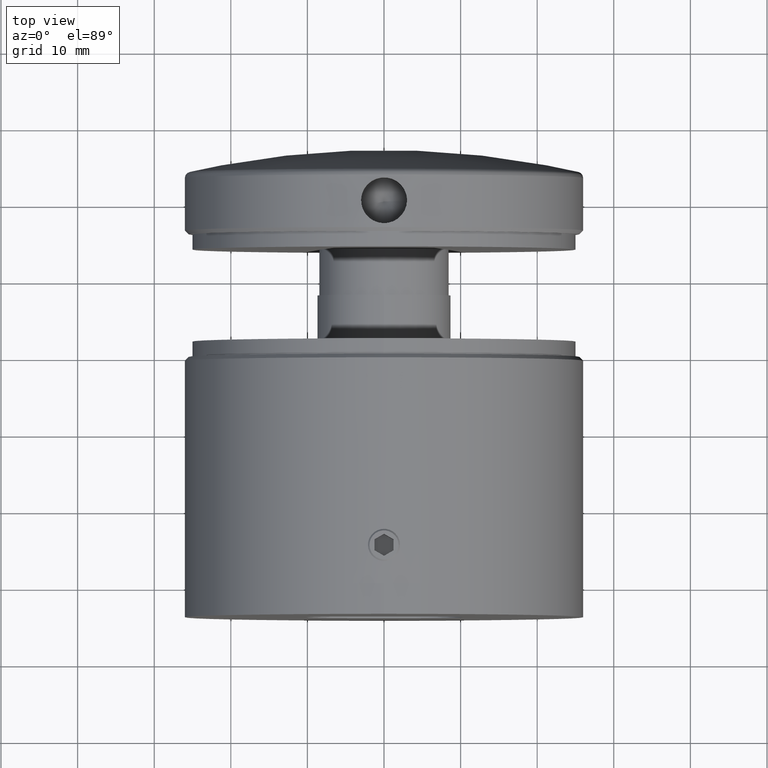
[diagram: clean part render]
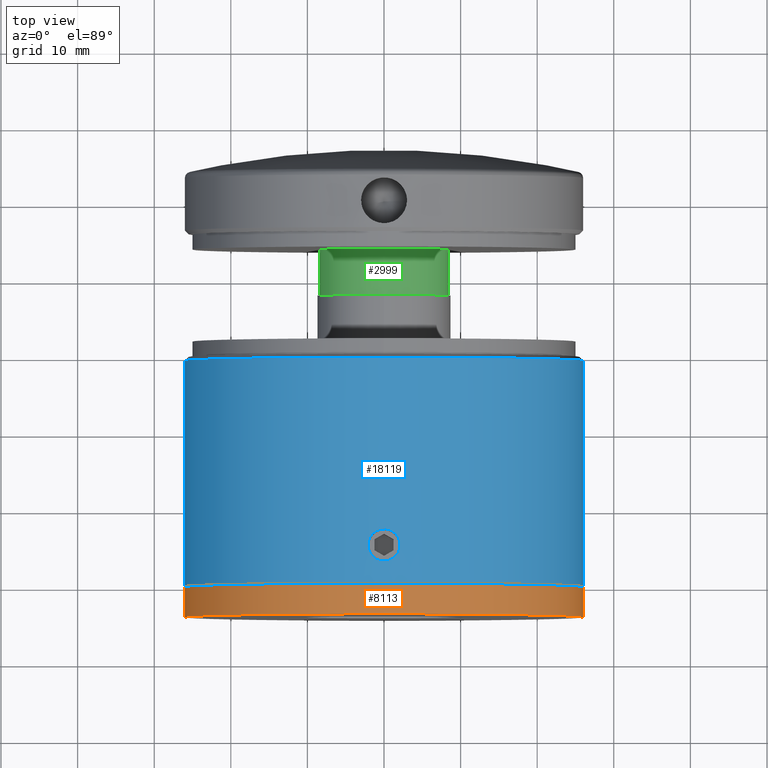
[diagram: same view with three faces highlighted in distinct colors, each labeled with its STEP entity id]
A machine part, top view with three faces highlighted in distinct colors.
Their STEP definitions:

[orange] entity #8113 — the highlighted cylindrical surface (bore or boss wall) has radius 26 mm, axis along (-0, -1, -0).
#1012 = DIRECTION ( 'NONE',  ( 0.000000000000000000, 0.000000000000000000, 1.000000000000000000 ) ) ;
#2492 = CARTESIAN_POINT ( 'NONE',  ( 0.000000000000000000, 4.000000000000000000, 25.99999999999999645 ) ) ;
#2925 = CYLINDRICAL_SURFACE ( 'NONE', #19687, 25.99999999999999645 ) ;
#3434 = AXIS2_PLACEMENT_3D ( 'NONE', #6305, #22490, #1012 ) ;
#3715 = DIRECTION ( 'NONE',  ( 0.000000000000000000, 0.000000000000000000, 1.000000000000000000 ) ) ;
#3854 = CARTESIAN_POINT ( 'NONE',  ( 0.000000000000000000, 4.000000000000000000, 0.000000000000000000 ) ) ;
#4449 = ORIENTED_EDGE ( 'NONE', *, *, #23276, .T. ) ;
#5639 = DIRECTION ( 'NONE',  ( -0.000000000000000000, -1.000000000000000000, -0.000000000000000000 ) ) ;
#5749 = EDGE_LOOP ( 'NONE', ( #16330 ) ) ;
#6305 = CARTESIAN_POINT ( 'NONE',  ( 0.000000000000000000, 4.000000000000000000, 0.000000000000000000 ) ) ;
#7646 = CARTESIAN_POINT ( 'NONE',  ( 0.000000000000000000, 0.000000000000000000, 25.99999999999999645 ) ) ;
#8113 = ADVANCED_FACE ( 'NONE', ( #22619, #17824 ), #2925, .T. ) ;
#8662 = AXIS2_PLACEMENT_3D ( 'NONE', #16594, #14465, #3715 ) ;
#9381 = EDGE_CURVE ( 'NONE', #16139, #16139, #13618, .T. ) ;
#11930 = CIRCLE ( 'NONE', #8662, 25.99999999999999645 ) ;
#13618 = CIRCLE ( 'NONE', #3434, 25.99999999999999645 ) ;
#14465 = DIRECTION ( 'NONE',  ( 0.000000000000000000, 1.000000000000000000, 0.000000000000000000 ) ) ;
#16139 = VERTEX_POINT ( 'NONE', #2492 ) ;
#16330 = ORIENTED_EDGE ( 'NONE', *, *, #9381, .F. ) ;
#16594 = CARTESIAN_POINT ( 'NONE',  ( 0.000000000000000000, 0.000000000000000000, 0.000000000000000000 ) ) ;
#17812 = EDGE_LOOP ( 'NONE', ( #4449 ) ) ;
#17824 = FACE_OUTER_BOUND ( 'NONE', #17812, .T. ) ;
#18838 = DIRECTION ( 'NONE',  ( 0.000000000000000000, 0.000000000000000000, -1.000000000000000000 ) ) ;
#19687 = AXIS2_PLACEMENT_3D ( 'NONE', #3854, #5639, #18838 ) ;
#20644 = VERTEX_POINT ( 'NONE', #7646 ) ;
#22490 = DIRECTION ( 'NONE',  ( 0.000000000000000000, 1.000000000000000000, 0.000000000000000000 ) ) ;
#22619 = FACE_OUTER_BOUND ( 'NONE', #5749, .T. ) ;
#23276 = EDGE_CURVE ( 'NONE', #20644, #20644, #11930, .T. ) ;

[blue] entity #18119 — the highlighted cylindrical surface (bore or boss wall) has radius 26 mm, axis along (-0, -1, -0).
#48 = CARTESIAN_POINT ( 'NONE',  ( -0.6753593128673861523, 6.993194401843729757, 25.99153851193517184 ) ) ;
#138 = CARTESIAN_POINT ( 'NONE',  ( -2.100099286971191859, 4.726618426426298925, 25.91504549474712604 ) ) ;
#292 = CARTESIAN_POINT ( 'NONE',  ( -1.992610389370325530, 5.677096818090381802, 25.92358578482312836 ) ) ;
#379 = CARTESIAN_POINT ( 'NONE',  ( -1.582305965105272438, 6.387632585860130163, 25.95199330139241667 ) ) ;
#452 = CARTESIAN_POINT ( 'NONE',  ( -0.9330401142055890773, 3.113639867592257637, 25.98356370839009699 ) ) ;
#1652 = CARTESIAN_POINT ( 'NONE',  ( 0.2751650311658658254, 7.099851416639489265, 25.99998799903801938 ) ) ;
#1958 = CARTESIAN_POINT ( 'NONE',  ( -1.679776207148330203, 3.710303220900370125, 25.94640408750757032 ) ) ;
#2115 = CARTESIAN_POINT ( 'NONE',  ( 0.000000000000000000, 29.50000000000000000, -25.99999999999999289 ) ) ;
#2123 = CARTESIAN_POINT ( 'NONE',  ( 0.1365899693063367115, 2.899865480402195050, 26.00001086503926118 ) ) ;
#2674 = DIRECTION ( 'NONE',  ( -0.000000000000000000, -1.000000000000000000, -0.000000000000000000 ) ) ;
#3278 = CIRCLE ( 'NONE', #14540, 25.99999999999999289 ) ;
#3636 = CARTESIAN_POINT ( 'NONE',  ( 2.033000561372071413, 5.543727166053645128, 25.92040943783972651 ) ) ;
#3809 = CARTESIAN_POINT ( 'NONE',  ( -1.836053107001190288, 3.944660372366392220, 25.93530218829718947 ) ) ;
#3884 = CARTESIAN_POINT ( 'NONE',  ( -2.086163109703135454, 5.277051459697118752, 25.91618512953988329 ) ) ;
#3958 = CARTESIAN_POINT ( 'NONE',  ( 1.821263503757339697, 3.945471368024777270, 25.93624731154056562 ) ) ;
#4034 = CARTESIAN_POINT ( 'NONE',  ( -1.821364900916784935, 6.054199029801260679, 25.93623799503714267 ) ) ;
#4112 = CARTESIAN_POINT ( 'NONE',  ( 2.044160095852805448, 4.446624291572655707, 25.91973168983960463 ) ) ;
#4490 = B_SPLINE_CURVE_WITH_KNOTS ( 'NONE', 3,
 ( #7190, #10851, #17704, #3636, #8754, #23217, #16219, #5429, #16048, #7264, #9072, #17780, #1652, #14235, #7030, #19603, #48, #12662, #18313, #12742, #7511, #379, #7346, #4034, #5517, #292, #20088, #3884, #21957, #138, #9151, #3809, #1958, #16367, #21884, #14549, #452, #10924, #11087, #14861, #12896, #2123, #9455, #18081, #14624, #11165, #14705, #16447, #5587, #9302, #20170, #3958, #18165, #4112, #16600, #5672 ),
 .UNSPECIFIED., .T., .F.,
 ( 4, 2, 2, 2, 2, 2, 2, 2, 2, 2, 2, 2, 2, 2, 2, 2, 2, 2, 2, 2, 2, 2, 2, 2, 2, 2, 2, 4 ),
 ( 0.000000000000000000, 0.0004104668921315337508, 0.0008209337842630675015, 0.001231400676394601252, 0.001641867568526135003, 0.002462801352789200336, 0.003283735137052265669, 0.003694202029183798336, 0.004104668921315331002, 0.004515135813446864536, 0.004925602705578397203, 0.005336069597709930737, 0.005746536489841463403, 0.006157003381972996937, 0.006567470274104529604, 0.007388404058367594937, 0.008209337842630660270, 0.008619804734762193804, 0.009030271626893727338, 0.009440738519025257403, 0.009851205411156790936, 0.01026167230328832447, 0.01067213919541985453, 0.01108260608755138807, 0.01149307297968291987, 0.01190353987181445167, 0.01231400676394598520, 0.01313494054820905053 ),
 .UNSPECIFIED. ) ;
#4551 = DIRECTION ( 'NONE',  ( -0.000000000000000000, -1.000000000000000000, -0.000000000000000000 ) ) ;
#5005 = DIRECTION ( 'NONE',  ( -0.000000000000000000, -1.000000000000000000, -0.000000000000000000 ) ) ;
#5251 = CYLINDRICAL_SURFACE ( 'NONE', #10711, 25.99999999999999645 ) ;
#5356 = EDGE_CURVE ( 'NONE', #21800, #21800, #3278, .T. ) ;
#5429 = CARTESIAN_POINT ( 'NONE',  ( 1.670277411755914709, 6.280234977953711883, 25.94640640643906693 ) ) ;
#5517 = CARTESIAN_POINT ( 'NONE',  ( -1.887148706429960132, 5.931464451664375304, 25.93147635339587964 ) ) ;
#5530 = FACE_OUTER_BOUND ( 'NONE', #20898, .T. ) ;
#5587 = CARTESIAN_POINT ( 'NONE',  ( 1.386813373150778128, 3.417119038468505288, 25.96316960514107208 ) ) ;
#5672 = CARTESIAN_POINT ( 'NONE',  ( 2.099999999999997424, 4.999999999999999112, 25.91505354036530306 ) ) ;
#7030 = CARTESIAN_POINT ( 'NONE',  ( -0.2750556725704311201, 7.086433002506038470, 25.99889400044466470 ) ) ;
#7170 = EDGE_LOOP ( 'NONE', ( #16647 ) ) ;
#7190 = CARTESIAN_POINT ( 'NONE',  ( 2.099999999999997424, 4.999999999999999112, 25.91505354036530306 ) ) ;
#7264 = CARTESIAN_POINT ( 'NONE',  ( 1.291111679411652835, 6.678699199965065780, 25.96864765088966820 ) ) ;
#7346 = CARTESIAN_POINT ( 'NONE',  ( -1.669243227214097569, 6.281535307795066636, 25.94647256345069763 ) ) ;
#7511 = CARTESIAN_POINT ( 'NONE',  ( -1.386172949092683959, 6.583584830614483074, 25.96320806522044577 ) ) ;
#8558 = CARTESIAN_POINT ( 'NONE',  ( 0.000000000000000000, 0.000000000000000000, 0.000000000000000000 ) ) ;
#8634 = DIRECTION ( 'NONE',  ( 0.000000000000000000, 0.000000000000000000, -1.000000000000000000 ) ) ;
#8754 = CARTESIAN_POINT ( 'NONE',  ( 1.992599160042153761, 5.677120789452698268, 25.92358661074948145 ) ) ;
#8826 = VERTEX_POINT ( 'NONE', #22166 ) ;
#9072 = CARTESIAN_POINT ( 'NONE',  ( 1.056914456920366563, 6.835141240740624013, 25.97973887134691040 ) ) ;
#9151 = CARTESIAN_POINT ( 'NONE',  ( -2.045140482374243174, 4.450242645582057399, 25.91965260217380873 ) ) ;
#9302 = CARTESIAN_POINT ( 'NONE',  ( 1.580685245242186898, 3.610684475793076942, 25.95208780489046418 ) ) ;
#9455 = CARTESIAN_POINT ( 'NONE',  ( 0.2734311670305148989, 2.913385292999100873, 25.99890881711472446 ) ) ;
#9709 = CIRCLE ( 'NONE', #22785, 25.99999999999999645 ) ;
#9955 = ORIENTED_EDGE ( 'NONE', *, *, #20496, .F. ) ;
#10711 = AXIS2_PLACEMENT_3D ( 'NONE', #19191, #2674, #15550 ) ;
#10851 = CARTESIAN_POINT ( 'NONE',  ( 2.099999999999996980, 5.138796672859960779, 25.91505354036529951 ) ) ;
#10924 = CARTESIAN_POINT ( 'NONE',  ( -0.6790218126945848365, 3.008054272391163853, 25.99144236514335304 ) ) ;
#11087 = CARTESIAN_POINT ( 'NONE',  ( -0.5455399143232699810, 2.967483908508076862, 25.99462266377991071 ) ) ;
#11165 = CARTESIAN_POINT ( 'NONE',  ( 0.9297566643219388194, 3.112005147232632218, 25.98368275802765481 ) ) ;
#12662 = CARTESIAN_POINT ( 'NONE',  ( -0.9296740769087523670, 6.888025485988405805, 25.98368508371377672 ) ) ;
#12742 = CARTESIAN_POINT ( 'NONE',  ( -1.280108565136260701, 6.670340120567080255, 25.96871751581180021 ) ) ;
#12896 = CARTESIAN_POINT ( 'NONE',  ( -0.1406954558784135612, 2.900136526148288763, 25.99998897289323097 ) ) ;
#14235 = CARTESIAN_POINT ( 'NONE',  ( -0.1358780624334420817, 7.100073830543624176, 26.00000596323533486 ) ) ;
#14540 = AXIS2_PLACEMENT_3D ( 'NONE', #22723, #4551, #19190 ) ;
#14549 = CARTESIAN_POINT ( 'NONE',  ( -1.053565934561727424, 3.178231502175824730, 25.97889608089622016 ) ) ;
#14624 = CARTESIAN_POINT ( 'NONE',  ( 0.6751850539863092360, 3.006737056532521990, 25.99154366842317287 ) ) ;
#14705 = CARTESIAN_POINT ( 'NONE',  ( 1.050418834901880372, 3.176423634196027024, 25.97902369779784237 ) ) ;
#14861 = CARTESIAN_POINT ( 'NONE',  ( -0.2770871598587642537, 2.913865256956097660, 25.99887005114377558 ) ) ;
#15550 = DIRECTION ( 'NONE',  ( 0.000000000000000000, 0.000000000000000000, -1.000000000000000000 ) ) ;
#16048 = CARTESIAN_POINT ( 'NONE',  ( 1.581614341408797308, 6.388252919398745178, 25.95203081882499418 ) ) ;
#16219 = CARTESIAN_POINT ( 'NONE',  ( 1.822668037246452988, 6.052002593627194393, 25.93614684694555450 ) ) ;
#16367 = CARTESIAN_POINT ( 'NONE',  ( -1.389649238057018232, 3.419615088910952228, 25.96301712609206547 ) ) ;
#16447 = CARTESIAN_POINT ( 'NONE',  ( 1.278680393590565068, 3.328537484212546360, 25.96878950722395274 ) ) ;
#16488 = EDGE_LOOP ( 'NONE', ( #18261 ) ) ;
#16600 = CARTESIAN_POINT ( 'NONE',  ( 2.099999999999997868, 4.722406654280078442, 25.91505354036531017 ) ) ;
#16647 = ORIENTED_EDGE ( 'NONE', *, *, #22383, .F. ) ;
#17704 = CARTESIAN_POINT ( 'NONE',  ( 2.086375087508013593, 5.275262616186469522, 25.91616784368428839 ) ) ;
#17780 = CARTESIAN_POINT ( 'NONE',  ( 0.5515874303148203817, 7.044642474720950176, 25.99537749868886038 ) ) ;
#18081 = CARTESIAN_POINT ( 'NONE',  ( 0.5419072552833817946, 2.966514798370207373, 25.99469870589812004 ) ) ;
#18091 = VERTEX_POINT ( 'NONE', #18616 ) ;
#18119 = ADVANCED_FACE ( 'NONE', ( #22712, #21883, #5530 ), #5251, .T. ) ;
#18165 = CARTESIAN_POINT ( 'NONE',  ( 1.886697760890792219, 4.067757889768828683, 25.93150866998944437 ) ) ;
#18261 = ORIENTED_EDGE ( 'NONE', *, *, #5356, .T. ) ;
#18313 = CARTESIAN_POINT ( 'NONE',  ( -1.052589253394152324, 6.822297977980116279, 25.97893422021398280 ) ) ;
#18616 = CARTESIAN_POINT ( 'NONE',  ( 0.000000000000000000, 0.000000000000000000, -25.99999999999999645 ) ) ;
#19190 = DIRECTION ( 'NONE',  ( 0.000000000000000000, 0.000000000000000000, -1.000000000000000000 ) ) ;
#19191 = CARTESIAN_POINT ( 'NONE',  ( 0.000000000000000000, 20.00000000000000000, 0.000000000000000000 ) ) ;
#19603 = CARTESIAN_POINT ( 'NONE',  ( -0.5444280021912952794, 7.032844422819789720, 25.99464835345537850 ) ) ;
#20088 = CARTESIAN_POINT ( 'NONE',  ( -2.032362703583654007, 5.546201311504010967, 25.92045968014364021 ) ) ;
#20170 = CARTESIAN_POINT ( 'NONE',  ( 1.667657756521174983, 3.716275343818325361, 25.94657670989814946 ) ) ;
#20496 = EDGE_CURVE ( 'NONE', #18091, #18091, #9709, .T. ) ;
#20898 = EDGE_LOOP ( 'NONE', ( #9955 ) ) ;
#21800 = VERTEX_POINT ( 'NONE', #2115 ) ;
#21883 = FACE_OUTER_BOUND ( 'NONE', #16488, .T. ) ;
#21884 = CARTESIAN_POINT ( 'NONE',  ( -1.281745290530080128, 3.330877281822141711, 25.96863823481467293 ) ) ;
#21957 = CARTESIAN_POINT ( 'NONE',  ( -2.099950149348869033, 5.137833215250493524, 25.91505757996182879 ) ) ;
#22166 = CARTESIAN_POINT ( 'NONE',  ( 2.099999999999996980, 4.999999999999999112, 25.91505354036529596 ) ) ;
#22383 = EDGE_CURVE ( 'NONE', #8826, #8826, #4490, .T. ) ;
#22712 = FACE_BOUND ( 'NONE', #7170, .T. ) ;
#22723 = CARTESIAN_POINT ( 'NONE',  ( 0.000000000000000000, 29.50000000000000000, 0.000000000000000000 ) ) ;
#22785 = AXIS2_PLACEMENT_3D ( 'NONE', #8558, #5005, #8634 ) ;
#23217 = CARTESIAN_POINT ( 'NONE',  ( 1.887173869133903725, 5.931406873373773259, 25.93147448498230645 ) ) ;

[green] entity #2999 — the highlighted cylindrical surface (bore or boss wall) has radius 8.5 mm, axis along (0, 1, -0).
#57 = EDGE_CURVE ( 'NONE', #14736, #14736, #16319, .T. ) ;
#2999 = ADVANCED_FACE ( 'NONE', ( #19385, #7853 ), #3062, .T. ) ;
#3062 = CYLINDRICAL_SURFACE ( 'NONE', #5807, 8.500000000000000000 ) ;
#3797 = VERTEX_POINT ( 'NONE', #6050 ) ;
#3994 = AXIS2_PLACEMENT_3D ( 'NONE', #15097, #4174, #7957 ) ;
#4095 = AXIS2_PLACEMENT_3D ( 'NONE', #8173, #13417, #11537 ) ;
#4174 = DIRECTION ( 'NONE',  ( -0.000000000000000000, -1.000000000000000000, -0.000000000000000000 ) ) ;
#5807 = AXIS2_PLACEMENT_3D ( 'NONE', #17966, #19722, #21319 ) ;
#6050 = CARTESIAN_POINT ( 'NONE',  ( 0.000000000000000000, 2.000000000000000000, -8.499999999999998224 ) ) ;
#7853 = FACE_OUTER_BOUND ( 'NONE', #16660, .T. ) ;
#7957 = DIRECTION ( 'NONE',  ( 0.000000000000000000, 0.000000000000000000, -1.000000000000000000 ) ) ;
#8173 = CARTESIAN_POINT ( 'NONE',  ( 0.000000000000000000, 2.000000000000000000, 0.000000000000000000 ) ) ;
#11537 = DIRECTION ( 'NONE',  ( 0.000000000000000000, 0.000000000000000000, -1.000000000000000000 ) ) ;
#12138 = ORIENTED_EDGE ( 'NONE', *, *, #15383, .F. ) ;
#13417 = DIRECTION ( 'NONE',  ( -0.000000000000000000, -1.000000000000000000, -0.000000000000000000 ) ) ;
#14736 = VERTEX_POINT ( 'NONE', #18156 ) ;
#15097 = CARTESIAN_POINT ( 'NONE',  ( 0.000000000000000000, 8.000000000000000000, 0.000000000000000000 ) ) ;
#15383 = EDGE_CURVE ( 'NONE', #3797, #3797, #20259, .T. ) ;
#15565 = EDGE_LOOP ( 'NONE', ( #19749 ) ) ;
#16319 = CIRCLE ( 'NONE', #3994, 8.500000000000000000 ) ;
#16660 = EDGE_LOOP ( 'NONE', ( #12138 ) ) ;
#17966 = CARTESIAN_POINT ( 'NONE',  ( 0.000000000000000000, 0.000000000000000000, 0.000000000000000000 ) ) ;
#18156 = CARTESIAN_POINT ( 'NONE',  ( 0.000000000000000000, 8.000000000000000000, -8.500000000000000000 ) ) ;
#19385 = FACE_OUTER_BOUND ( 'NONE', #15565, .T. ) ;
#19722 = DIRECTION ( 'NONE',  ( -0.000000000000000000, -1.000000000000000000, -0.000000000000000000 ) ) ;
#19749 = ORIENTED_EDGE ( 'NONE', *, *, #57, .T. ) ;
#20259 = CIRCLE ( 'NONE', #4095, 8.499999999999998224 ) ;
#21319 = DIRECTION ( 'NONE',  ( 0.000000000000000000, 0.000000000000000000, -1.000000000000000000 ) ) ;